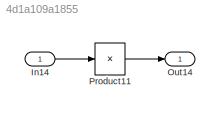
MODEL slx_4d1a109a1855
KIND model
CONFIG AbsTol = auto
CONFIG EnableMultiTasking = on
CONFIG FixedStep = 0.1
CONFIG MaxStep = auto
CONFIG MinStep = auto
CONFIG RelTol = 1e-3
CONFIG SampleTimeConstraint = Unconstrained
CONFIG Solver = FixedStepAuto
CONFIG SolverName = FixedStepAuto
CONFIG StartTime = 0.0
CONFIG StopTime = 10.0
BLOCK [Inport] In14
  IconDisplay = Port number
  PortDimensions = [2 3]
BLOCK [Outport] Out14
  IconDisplay = Port number
BLOCK [Product] Product11
  CollapseDim = 2
  CollapseMode = Specified dimension
  InputSameDT = off
  Inputs = /
  OutDataTypeStr = Inherit: Inherit via internal rule
  Ports = [1, 1]
  SaturateOnIntegerOverflow = off
LINE In14:1 -> Product11:1
LINE Product11:1 -> Out14:1
